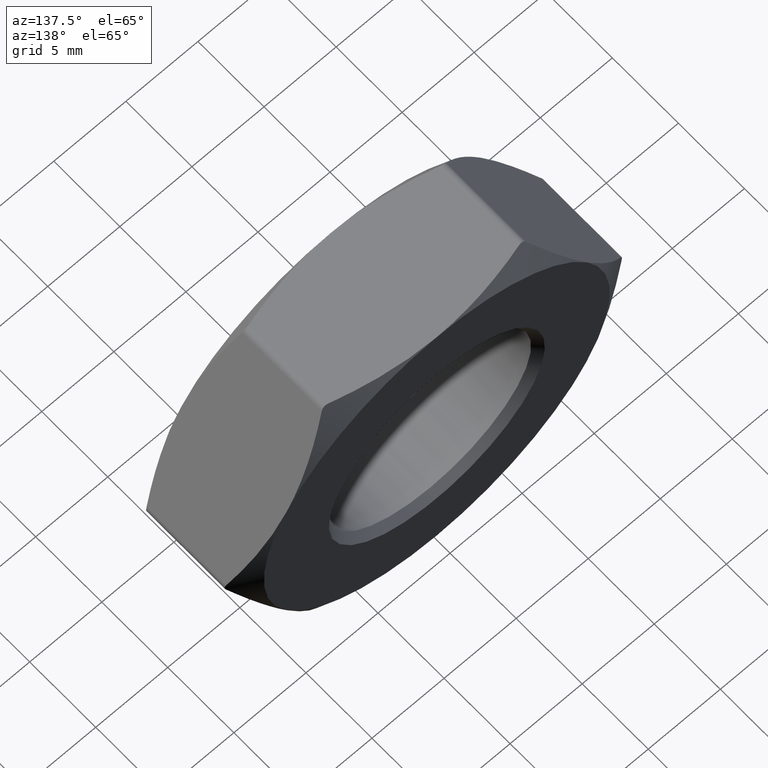
[diagram: clean part render]
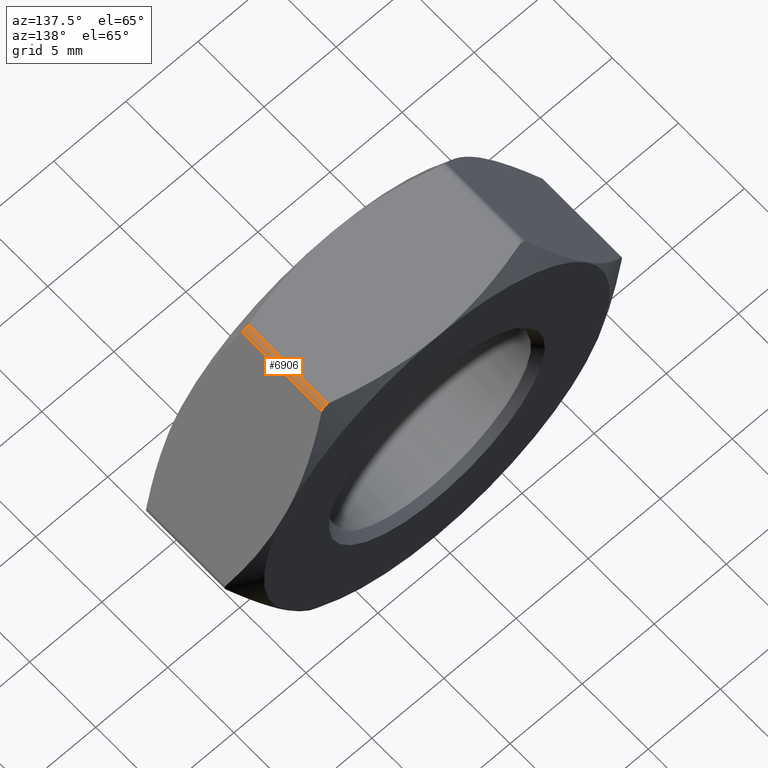
[diagram: same view with one face highlighted and labeled with its STEP entity id]
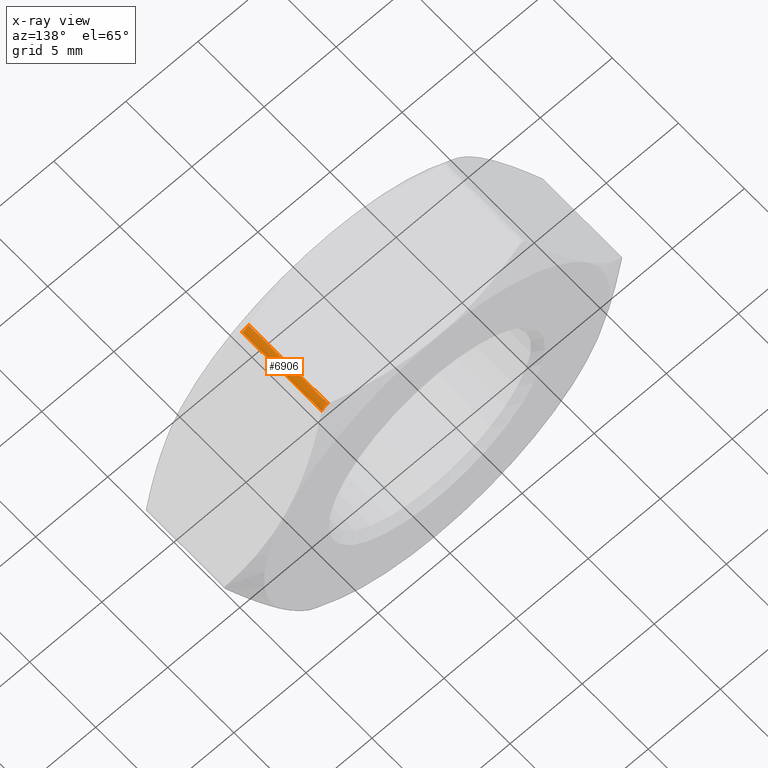
[diagram: x-ray of the same camera — body ghosted, the highlighted face saturated]
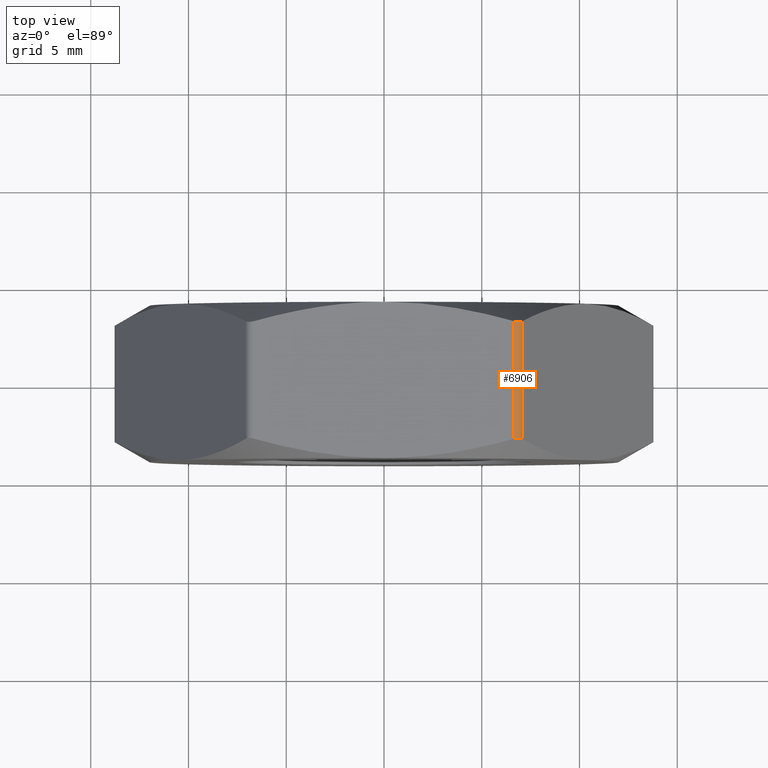
[diagram: same view with one face highlighted and labeled with its STEP entity id]
A machine part, auxiliary view. The second image highlights one B-rep face of the part: STEP entity #6906.
The next image is the same camera in x-ray: the body ghosted, the highlighted face saturated — about 0% of this face is hidden behind the body in this view.
A second angle (top view) of the same face is appended — the face is thin or edge-on in the first view.
In plain terms, the highlighted cylindrical surface (edge-blend (fillet) strip) has radius 0.5 mm, axis along (0, -1, 0).
Its self-contained STEP definition (entity closure, byte-faithful):
#222 = CARTESIAN_POINT ( 'NONE',  ( 6.965490637025101073, 2.972817233024176886, 11.88924742842494453 ) ) ;
#789 = ORIENTED_EDGE ( 'NONE', *, *, #7217, .F. ) ;
#886 = AXIS2_PLACEMENT_3D ( 'NONE', #3522, #10757, #3621 ) ;
#1447 = CARTESIAN_POINT ( 'NONE',  ( 7.072540797572915316, 3.010220883462386254, 11.75000000000000178 ) ) ;
#1624 = CARTESIAN_POINT ( 'NONE',  ( 6.639528095680694797, 3.010220883462388919, 12.00000000000000000 ) ) ;
#2331 = CARTESIAN_POINT ( 'NONE',  ( 7.029625122902165124, -2.986229937684952596, 11.82433212897083408 ) ) ;
#2380 = CARTESIAN_POINT ( 'NONE',  ( 6.966193649169466262, -2.972905852214858147, 11.88865763218930027 ) ) ;
#2652 = FACE_OUTER_BOUND ( 'NONE', #11667, .T. ) ;
#3019 = EDGE_CURVE ( 'NONE', #8839, #4007, #5851, .T. ) ;
#3023 = CYLINDRICAL_SURFACE ( 'NONE', #886, 0.5000000000000004441 ) ;
#3515 = CARTESIAN_POINT ( 'NONE',  ( 6.639528095680694797, -3.010220883462388919, 12.00000000000000000 ) ) ;
#3522 = CARTESIAN_POINT ( 'NONE',  ( 6.639528095680696573, 4.000000000000000000, 11.50000000000000000 ) ) ;
#3621 = DIRECTION ( 'NONE',  ( 0.000000000000000000, 0.000000000000000000, -1.000000000000000000 ) ) ;
#3912 = CARTESIAN_POINT ( 'NONE',  ( 7.029609111664274046, 2.986220986998712856, 11.82435986124865579 ) ) ;
#4007 = VERTEX_POINT ( 'NONE', #1447 ) ;
#5202 = B_SPLINE_CURVE_WITH_KNOTS ( 'NONE', 3,
 ( #6029, #2331, #2380, #13161, #15423, #10689 ),
 .UNSPECIFIED., .F., .F.,
 ( 4, 2, 4 ),
 ( 6.095918013215408907E-16, 0.0002638430375142720584, 0.0005276860750279344699 ),
 .UNSPECIFIED. ) ;
#5466 = EDGE_CURVE ( 'NONE', #4007, #10710, #13122, .T. ) ;
#5718 = CARTESIAN_POINT ( 'NONE',  ( 7.072540797572600901, -3.010220883462211727, 11.75000000000054534 ) ) ;
#5851 = B_SPLINE_CURVE_WITH_KNOTS ( 'NONE', 3,
 ( #14523, #13360, #9832, #222, #3912, #8578 ),
 .UNSPECIFIED., .F., .F.,
 ( 4, 2, 4 ),
 ( 1.788112030672749005E-18, 0.0002638430375139713549, 0.0005276860750279408667 ),
 .UNSPECIFIED. ) ;
#6029 = CARTESIAN_POINT ( 'NONE',  ( 7.072540797572600901, -3.010220883462211727, 11.75000000000054534 ) ) ;
#6906 = ADVANCED_FACE ( 'NONE', ( #2652 ), #3023, .T. ) ;
#7217 = EDGE_CURVE ( 'NONE', #10368, #8839, #9582, .T. ) ;
#7752 = DIRECTION ( 'NONE',  ( 0.000000000000000000, -1.000000000000000000, 0.000000000000000000 ) ) ;
#8325 = CARTESIAN_POINT ( 'NONE',  ( 6.639528095680696573, 4.000000000000000000, 12.00000000000000000 ) ) ;
#8578 = CARTESIAN_POINT ( 'NONE',  ( 7.072540797572915316, 3.010220883462386254, 11.75000000000000178 ) ) ;
#8839 = VERTEX_POINT ( 'NONE', #1624 ) ;
#8961 = CARTESIAN_POINT ( 'NONE',  ( 7.072540797572916205, 4.000000000000000000, 11.75000000000000000 ) ) ;
#9016 = VECTOR ( 'NONE', #12963, 1000.000000000000000 ) ;
#9282 = ORIENTED_EDGE ( 'NONE', *, *, #3019, .F. ) ;
#9582 = LINE ( 'NONE', #8325, #9016 ) ;
#9832 = CARTESIAN_POINT ( 'NONE',  ( 6.812782701786550099, 2.972905852214889233, 11.97722948395739451 ) ) ;
#10368 = VERTEX_POINT ( 'NONE', #3515 ) ;
#10689 = CARTESIAN_POINT ( 'NONE',  ( 6.639528095680694797, -3.010220883462388919, 12.00000000000000000 ) ) ;
#10710 = VERTEX_POINT ( 'NONE', #5718 ) ;
#10757 = DIRECTION ( 'NONE',  ( 0.000000000000000000, -1.000000000000000000, 0.000000000000000000 ) ) ;
#11352 = EDGE_CURVE ( 'NONE', #10710, #10368, #5202, .T. ) ;
#11667 = EDGE_LOOP ( 'NONE', ( #9282, #789, #13594, #12527 ) ) ;
#12382 = VECTOR ( 'NONE', #7752, 1000.000000000000000 ) ;
#12527 = ORIENTED_EDGE ( 'NONE', *, *, #5466, .F. ) ;
#12963 = DIRECTION ( 'NONE',  ( -0.000000000000000000, 1.000000000000000000, -0.000000000000000000 ) ) ;
#13122 = LINE ( 'NONE', #8961, #12382 ) ;
#13161 = CARTESIAN_POINT ( 'NONE',  ( 6.813644986382036528, -2.972817233024210193, 11.97691555569892152 ) ) ;
#13360 = CARTESIAN_POINT ( 'NONE',  ( 6.725359445022292881, 2.986229937685103142, 11.99999999999999822 ) ) ;
#13594 = ORIENTED_EDGE ( 'NONE', *, *, #11352, .F. ) ;
#14523 = CARTESIAN_POINT ( 'NONE',  ( 6.639528095680694797, 3.010220883462388919, 12.00000000000000000 ) ) ;
#15423 = CARTESIAN_POINT ( 'NONE',  ( 6.725391467499020060, -2.986220986998567195, 12.00000000000000000 ) ) ;